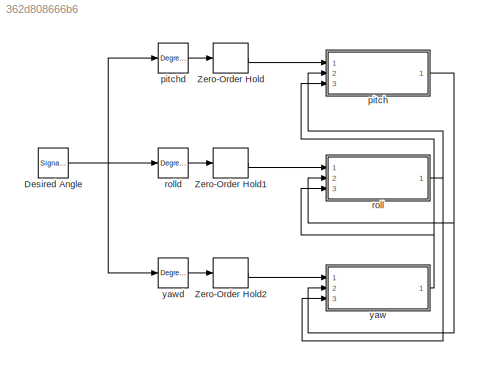
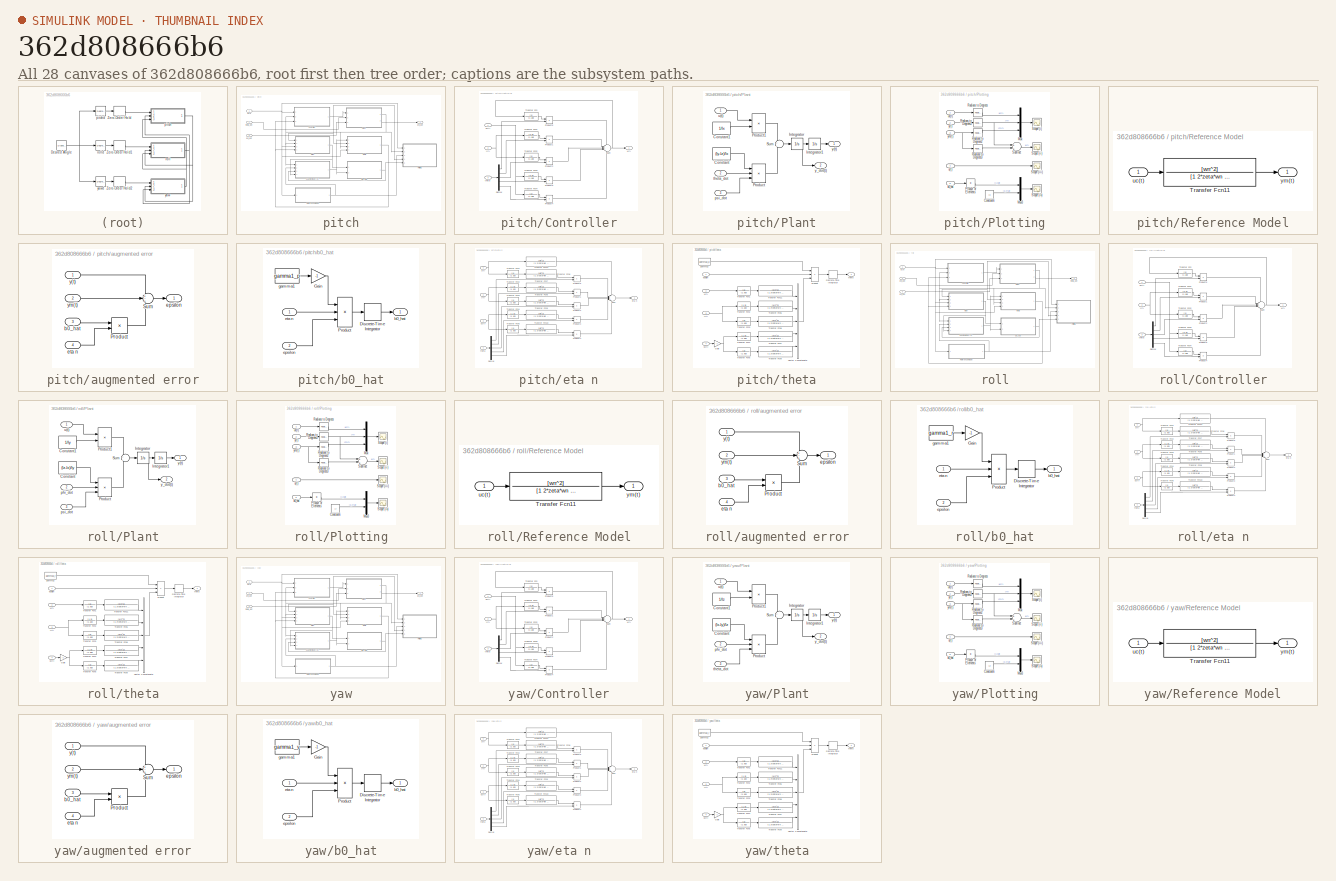
[diagram: thumbnail index - all 28 canvases of the model, root first then tree order]
MODEL slx_362d808666b6
KIND model
CONFIG AbsTol = auto
CONFIG EnableMultiTasking = off
CONFIG FixedStep = auto
CONFIG MaxStep = auto
CONFIG MinStep = auto
CONFIG RelTol = 1e-3
CONFIG SampleTimeConstraint = Unconstrained
CONFIG Solver = VariableStepAuto
CONFIG SolverName = VariableStepAuto
CONFIG StartTime = 0.0
CONFIG StopTime = 100
BLOCK [SignalGenerator] Desired Angle
  Amplitude = 5
  Frequency = 0.05
  Ports = [0, 1]
  WaveForm = square
BLOCK [ZeroOrderHold] Zero-Order Hold
  SampleTime = 1/2000
BLOCK [ZeroOrderHold] Zero-Order Hold1
  SampleTime = 1/2000
BLOCK [ZeroOrderHold] Zero-Order Hold2
  SampleTime = 1/2000
BLOCK [SubSystem] pitch
  Ports = [3, 1]
  RequestExecContextInheritance = off
  Variant = off
BLOCK [SubSystem] pitch/Controller
  Ports = [3, 1]
  RequestExecContextInheritance = off
  Variant = off
BLOCK [Demux] pitch/Controller/Demux
  DisplayOption = bar
  Outputs = 5
  Ports = [1, 5]
BLOCK [Product] pitch/Controller/Product1
  InputSameDT = off
  OutDataTypeStr = Inherit: Inherit via internal rule
  Ports = [2, 1]
  RndMeth = Floor
  SaturateOnIntegerOverflow = off
BLOCK [Product] pitch/Controller/Product2
  InputSameDT = off
  OutDataTypeStr = Inherit: Inherit via internal rule
  Ports = [2, 1]
  RndMeth = Floor
  SaturateOnIntegerOverflow = off
BLOCK [Product] pitch/Controller/Product3
  InputSameDT = off
  OutDataTypeStr = Inherit: Inherit via internal rule
  Ports = [2, 1]
  RndMeth = Floor
  SaturateOnIntegerOverflow = off
BLOCK [Product] pitch/Controller/Product4
  InputSameDT = off
  OutDataTypeStr = Inherit: Inherit via internal rule
  Ports = [2, 1]
  RndMeth = Floor
  SaturateOnIntegerOverflow = off
BLOCK [Product] pitch/Controller/Product5
  InputSameDT = off
  OutDataTypeStr = Inherit: Inherit via internal rule
  Ports = [2, 1]
  RndMeth = Floor
  SaturateOnIntegerOverflow = off
BLOCK [Sum] pitch/Controller/Sum
  IconShape = round
  InputSameDT = off
  Inputs = ---++
  OutDataTypeStr = Inherit: Inherit via internal rule
  Ports = [5, 1]
  SaturateOnIntegerOverflow = off
BLOCK [TransferFcn] pitch/Controller/Transfer Fcn
  Denominator = [1 a0]
BLOCK [TransferFcn] pitch/Controller/Transfer Fcn1
  Denominator = [1 a0]
  Numerator = [1 0]
BLOCK [TransferFcn] pitch/Controller/Transfer Fcn2
  Denominator = [1 a0]
BLOCK [TransferFcn] pitch/Controller/Transfer Fcn3
  Denominator = [1 a0]
  Numerator = [1 0]
BLOCK [TransferFcn] pitch/Controller/Transfer Fcn4
  Denominator = [1 a0]
BLOCK [Inport] pitch/Controller/theta
  IconDisplay = Port number
  Port = 3
BLOCK [Outport] pitch/Controller/u(t)
  IconDisplay = Port number
BLOCK [Inport] pitch/Controller/uc(t)
  IconDisplay = Port number
BLOCK [Inport] pitch/Controller/y(t)
  IconDisplay = Port number
  Port = 2
BLOCK [SubSystem] pitch/Plant
  Ports = [3, 2]
  RequestExecContextInheritance = off
  Variant = off
BLOCK [Constant] pitch/Plant/Constant
  Value = (Iy-Iz)/Ix
BLOCK [Constant] pitch/Plant/Constant1
  Value = 1/Ix
BLOCK [Integrator] pitch/Plant/Integrator
  Ports = [1, 1]
BLOCK [Integrator] pitch/Plant/Integrator1
  Ports = [1, 1]
BLOCK [Product] pitch/Plant/Product
  InputSameDT = off
  Inputs = 3
  OutDataTypeStr = Inherit: Inherit via internal rule
  Ports = [3, 1]
  RndMeth = Floor
  SaturateOnIntegerOverflow = off
BLOCK [Product] pitch/Plant/Product1
  InputSameDT = off
  OutDataTypeStr = Inherit: Inherit via internal rule
  Ports = [2, 1]
  RndMeth = Floor
  SaturateOnIntegerOverflow = off
BLOCK [Sum] pitch/Plant/Sum
  IconShape = round
  InputSameDT = off
  Inputs = +|+
  OutDataTypeStr = Inherit: Inherit via internal rule
  Ports = [2, 1]
  SaturateOnIntegerOverflow = off
BLOCK [Inport] pitch/Plant/psi_dot
  IconDisplay = Port number
  Port = 3
BLOCK [Inport] pitch/Plant/theta_dot
  IconDisplay = Port number
  Port = 2
BLOCK [Inport] pitch/Plant/u(t)
  IconDisplay = Port number
BLOCK [Outport] pitch/Plant/y(t)
  IconDisplay = Port number
BLOCK [Outport] pitch/Plant/y_dot(t)
  IconDisplay = Port number
  Port = 2
BLOCK [SubSystem] pitch/Plotting
  Ports = [5]
  RequestExecContextInheritance = off
  Variant = off
BLOCK [Constant] pitch/Plotting/Constant6
  Value = Ix
BLOCK [Mux] pitch/Plotting/Mux
  DisplayOption = bar
  Inputs = 3
  Ports = [3, 1]
BLOCK [Mux] pitch/Plotting/Mux3
  DisplayOption = bar
  Inputs = 2
  Ports = [2, 1]
BLOCK [Product] pitch/Plotting/Product of Elements
  InputSameDT = off
  Inputs = /
  OutDataTypeStr = Inherit: Inherit via internal rule
  Ports = [1, 1]
  RndMeth = Floor
  SaturateOnIntegerOverflow = off
BLOCK [Reference] pitch/Plotting/Radians to Degrees  REF=simulink_extras/Transformations/Radians
to Degrees
  Ports = [1, 1]
  SourceBlock = simulink_extras/Transformations/Radians\nto Degrees
  SourceProductBaseCode = SL
  SourceProductName = Simulink
  SourceType = RadiansToDegrees
BLOCK [Reference] pitch/Plotting/Radians to Degrees1  REF=simulink_extras/Transformations/Radians
to Degrees
  Ports = [1, 1]
  SourceBlock = simulink_extras/Transformations/Radians\nto Degrees
  SourceProductBaseCode = SL
  SourceProductName = Simulink
  SourceType = RadiansToDegrees
BLOCK [Reference] pitch/Plotting/Radians to Degrees2  REF=simulink_extras/Transformations/Radians
to Degrees
  Ports = [1, 1]
  SourceBlock = simulink_extras/Transformations/Radians\nto Degrees
  SourceProductBaseCode = SL
  SourceProductName = Simulink
  SourceType = RadiansToDegrees
BLOCK [Reference] pitch/Plotting/Radians to Degrees3  REF=simulink_extras/Transformations/Radians
to Degrees
  Ports = [1, 1]
  SourceBlock = simulink_extras/Transformations/Radians\nto Degrees
  SourceProductBaseCode = SL
  SourceProductName = Simulink
  SourceType = RadiansToDegrees
BLOCK [Scope] pitch/Plotting/Scope (i)
  NumInputPorts = 1
  Ports = [1]
  ScopeSpecificationString = Simulink.scopes.TimeScopeBlockCfg('CurrentConfiguration', extmgr.ConfigurationSet(extmgr.Configuration('Core','General UI',true),extmgr.Configuration('Core','Source UI',true),extmgr.Configuration('Sources','WiredSimulink',true,'DataLoggingVariableName','ScopeData1'),extmgr.Configuration('Visuals','Time Domain',true,'SerializedDisplays',{struct('MinYLimReal','-11.47648','MaxYLimReal','10.22602','YL...<+1481ch>  <repeated x3 — deduplicated; at blocks: Scope (i)>
BLOCK [Scope] pitch/Plotting/Scope (ii)
  NumInputPorts = 1
  Ports = [1]
  ScopeSpecificationString = Simulink.scopes.TimeScopeBlockCfg('CurrentConfiguration', extmgr.ConfigurationSet(extmgr.Configuration('Core','General UI',true),extmgr.Configuration('Core','Source UI',true),extmgr.Configuration('Sources','WiredSimulink',true),extmgr.Configuration('Visuals','Time Domain',true,'SerializedDisplays',{struct('MinYLimReal','-5.43198','MaxYLimReal','6.60364','YLabelReal','','MinYLimMag','0.00000','MaxY...<+1374ch>  <repeated x3 — deduplicated; at blocks: Scope (ii)>
BLOCK [Scope] pitch/Plotting/Scope (iii)
  NumInputPorts = 1
  Ports = [1]
  ScopeSpecificationString = Simulink.scopes.TimeScopeBlockCfg('CurrentConfiguration', extmgr.ConfigurationSet(extmgr.Configuration('Core','General UI',true),extmgr.Configuration('Core','Source UI',true),extmgr.Configuration('Sources','WiredSimulink',true,'DataLoggingVariableName','ScopeData2'),extmgr.Configuration('Visuals','Time Domain',true,'SerializedDisplays',{struct('MinYLimReal','-6.67828','MaxYLimReal','7.2386','YLabe...<+1383ch>  <repeated x3 — deduplicated; at blocks: Scope (iii)>
BLOCK [Scope] pitch/Plotting/Scope (iv)
  NumInputPorts = 1
  Ports = [1]
  ScopeSpecificationString = Simulink.scopes.TimeScopeBlockCfg('CurrentConfiguration', extmgr.ConfigurationSet(extmgr.Configuration('Core','General UI',true),extmgr.Configuration('Core','Source UI',true),extmgr.Configuration('Sources','WiredSimulink',true,'DataLoggingVariableName','ScopeData2'),extmgr.Configuration('Visuals','Time Domain',true,'SerializedDisplays',{struct('MinYLimReal','-0.00000','MaxYLimReal','0.25','YLabelR...<+1429ch>  <repeated x3 — deduplicated; at blocks: Scope (iv)>
BLOCK [Sum] pitch/Plotting/Subtract
  InputSameDT = off
  Inputs = +-
  OutDataTypeStr = Inherit: Inherit via internal rule
  Ports = [2, 1]
  SaturateOnIntegerOverflow = off
BLOCK [Inport] pitch/Plotting/b0_hat
  IconDisplay = Port number
  Port = 5
BLOCK [Inport] pitch/Plotting/u(t)
  IconDisplay = Port number
  Port = 4
BLOCK [Inport] pitch/Plotting/uc(t)
  IconDisplay = Port number
BLOCK [Inport] pitch/Plotting/y(t)
  IconDisplay = Port number
  Port = 2
BLOCK [Inport] pitch/Plotting/ym(t)
  IconDisplay = Port number
  Port = 3
BLOCK [SubSystem] pitch/Reference Model
  Ports = [1, 1]
  RequestExecContextInheritance = off
  Variant = off
BLOCK [TransferFcn] pitch/Reference Model/Transfer Fcn11
  Denominator = [1 2*zeta*wn wn^2]
  Numerator = [wn^2]
BLOCK [Inport] pitch/Reference Model/uc(t)
  IconDisplay = Port number
BLOCK [Outport] pitch/Reference Model/ym(t)
  IconDisplay = Port number
BLOCK [SubSystem] pitch/augmented error
  Ports = [4, 1]
  RequestExecContextInheritance = off
  Variant = off
BLOCK [Product] pitch/augmented error/Product
  InputSameDT = off
  OutDataTypeStr = Inherit: Inherit via internal rule
  Ports = [2, 1]
  RndMeth = Floor
  SaturateOnIntegerOverflow = off
BLOCK [Sum] pitch/augmented error/Sum
  IconShape = round
  InputSameDT = off
  Inputs = +-+
  OutDataTypeStr = Inherit: Inherit via internal rule
  Ports = [3, 1]
  SaturateOnIntegerOverflow = off
BLOCK [Inport] pitch/augmented error/b0_hat
  IconDisplay = Port number
  Port = 3
BLOCK [Outport] pitch/augmented error/epsilon
  IconDisplay = Port number
BLOCK [Inport] pitch/augmented error/eta n
  IconDisplay = Port number
  Port = 4
BLOCK [Inport] pitch/augmented error/y(t)
  IconDisplay = Port number
BLOCK [Inport] pitch/augmented error/ym(t)
  IconDisplay = Port number
  Port = 2
BLOCK [SubSystem] pitch/b0_hat
  Ports = [2, 1]
  RequestExecContextInheritance = off
  Variant = off
BLOCK [DiscreteIntegrator] pitch/b0_hat/Discrete-Time Integrator
  ICPrevOutput = DiscIntNeverNeededParam
  ICPrevScaledInput = DiscIntNeverNeededParam
  InitialCondition = b0_zero_p
  InitialConditionSetting = State (most efficient)
  Ports = [1, 1]
  SampleTime = -1
BLOCK [Gain] pitch/b0_hat/Gain
  Gain = -1
  OutDataTypeStr = Inherit: Inherit via internal rule
  ParamDataTypeStr = Inherit: Inherit via internal rule
  SaturateOnIntegerOverflow = off
BLOCK [Product] pitch/b0_hat/Product
  InputSameDT = off
  Inputs = 3
  OutDataTypeStr = Inherit: Inherit via internal rule
  Ports = [3, 1]
  RndMeth = Floor
  SaturateOnIntegerOverflow = off
BLOCK [Outport] pitch/b0_hat/b0_hat
  IconDisplay = Port number
BLOCK [Inport] pitch/b0_hat/epsilon
  IconDisplay = Port number
  Port = 2
BLOCK [Inport] pitch/b0_hat/eta n
  IconDisplay = Port number
BLOCK [Constant] pitch/b0_hat/gamma1
  Value = gamma1_p
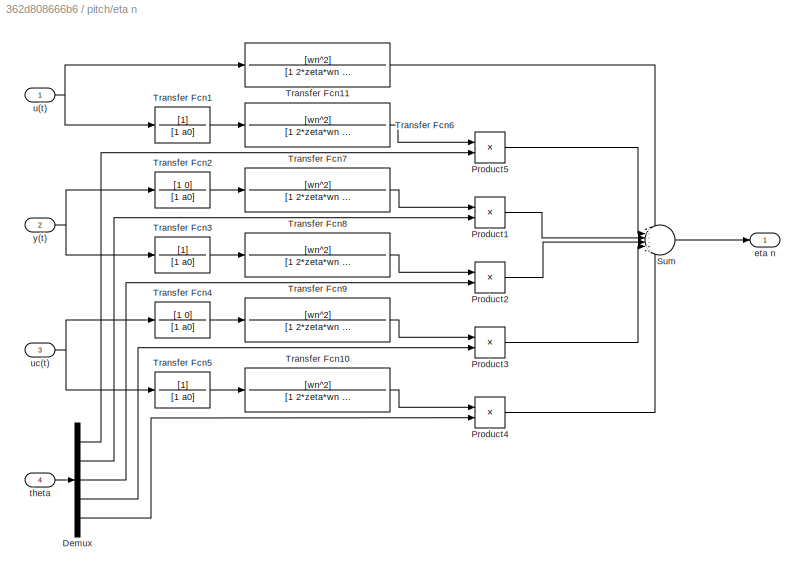
BLOCK [SubSystem] pitch/eta n
  Ports = [4, 1]
  RequestExecContextInheritance = off
  Variant = off
BLOCK [Demux] pitch/eta n/Demux
  DisplayOption = bar
  Outputs = 5
  Ports = [1, 5]
BLOCK [Product] pitch/eta n/Product1
  InputSameDT = off
  OutDataTypeStr = Inherit: Inherit via internal rule
  Ports = [2, 1]
  RndMeth = Floor
  SaturateOnIntegerOverflow = off
BLOCK [Product] pitch/eta n/Product2
  InputSameDT = off
  OutDataTypeStr = Inherit: Inherit via internal rule
  Ports = [2, 1]
  RndMeth = Floor
  SaturateOnIntegerOverflow = off
BLOCK [Product] pitch/eta n/Product3
  InputSameDT = off
  OutDataTypeStr = Inherit: Inherit via internal rule
  Ports = [2, 1]
  RndMeth = Floor
  SaturateOnIntegerOverflow = off
BLOCK [Product] pitch/eta n/Product4
  InputSameDT = off
  OutDataTypeStr = Inherit: Inherit via internal rule
  Ports = [2, 1]
  RndMeth = Floor
  SaturateOnIntegerOverflow = off
BLOCK [Product] pitch/eta n/Product5
  InputSameDT = off
  OutDataTypeStr = Inherit: Inherit via internal rule
  Ports = [2, 1]
  RndMeth = Floor
  SaturateOnIntegerOverflow = off
BLOCK [Sum] pitch/eta n/Sum
  IconShape = round
  InputSameDT = off
  Inputs = ----++
  OutDataTypeStr = Inherit: Inherit via internal rule
  Ports = [6, 1]
  SaturateOnIntegerOverflow = off
BLOCK [TransferFcn] pitch/eta n/Transfer Fcn1
  Denominator = [1 a0]
BLOCK [TransferFcn] pitch/eta n/Transfer Fcn10
  Denominator = [1 2*zeta*wn wn^2]
  Numerator = [wn^2]
BLOCK [TransferFcn] pitch/eta n/Transfer Fcn11
  Denominator = [1 2*zeta*wn wn^2]
  Numerator = [wn^2]
BLOCK [TransferFcn] pitch/eta n/Transfer Fcn2
  Denominator = [1 a0]
  Numerator = [1 0]
BLOCK [TransferFcn] pitch/eta n/Transfer Fcn3
  Denominator = [1 a0]
BLOCK [TransferFcn] pitch/eta n/Transfer Fcn4
  Denominator = [1 a0]
  Numerator = [1 0]
BLOCK [TransferFcn] pitch/eta n/Transfer Fcn5
  Denominator = [1 a0]
BLOCK [TransferFcn] pitch/eta n/Transfer Fcn6
  Denominator = [1 2*zeta*wn wn^2]
  Numerator = [wn^2]
BLOCK [TransferFcn] pitch/eta n/Transfer Fcn7
  Denominator = [1 2*zeta*wn wn^2]
  Numerator = [wn^2]
BLOCK [TransferFcn] pitch/eta n/Transfer Fcn8
  Denominator = [1 2*zeta*wn wn^2]
  Numerator = [wn^2]
BLOCK [TransferFcn] pitch/eta n/Transfer Fcn9
  Denominator = [1 2*zeta*wn wn^2]
  Numerator = [wn^2]
BLOCK [Outport] pitch/eta n/eta n
  IconDisplay = Port number
BLOCK [Inport] pitch/eta n/theta
  IconDisplay = Port number
  Port = 4
BLOCK [Inport] pitch/eta n/u(t)
  IconDisplay = Port number
BLOCK [Inport] pitch/eta n/uc(t)
  IconDisplay = Port number
  Port = 3
BLOCK [Inport] pitch/eta n/y(t)
  IconDisplay = Port number
  Port = 2
BLOCK [Outport] pitch/phi_dot
  IconDisplay = Port number
BLOCK [Inport] pitch/psi_dot
  IconDisplay = Port number
  Port = 3
BLOCK [SubSystem] pitch/theta
  Ports = [4, 1]
  RequestExecContextInheritance = off
  Variant = off
BLOCK [DiscreteIntegrator] pitch/theta/Discrete-Time Integrator
  ICPrevOutput = DiscIntNeverNeededParam
  ICPrevScaledInput = DiscIntNeverNeededParam
  InitialCondition = theta_zero_p
  InitialConditionSetting = State (most efficient)
  Ports = [1, 1]
  SampleTime = -1
BLOCK [Gain] pitch/theta/Gain
  Gain = -1
  OutDataTypeStr = Inherit: Inherit via internal rule
  ParamDataTypeStr = Inherit: Inherit via internal rule
  SaturateOnIntegerOverflow = off
BLOCK [Product] pitch/theta/Product
  InputSameDT = off
  Inputs = 3
  OutDataTypeStr = Inherit: Inherit via internal rule
  Ports = [3, 1]
  RndMeth = Floor
  SaturateOnIntegerOverflow = off
BLOCK [TransferFcn] pitch/theta/Transfer Fcn1
  Denominator = [1 a0]
BLOCK [TransferFcn] pitch/theta/Transfer Fcn11
  Denominator = [1 2*zeta*wn wn^2]
  Numerator = [wn^2]
BLOCK [TransferFcn] pitch/theta/Transfer Fcn2
  Denominator = [1 a0]
  Numerator = [1 0]
BLOCK [TransferFcn] pitch/theta/Transfer Fcn3
  Denominator = [1 a0]
BLOCK [TransferFcn] pitch/theta/Transfer Fcn4
  Denominator = [1 a0]
  Numerator = [1 0]
BLOCK [TransferFcn] pitch/theta/Transfer Fcn5
  Denominator = [1 a0]
BLOCK [TransferFcn] pitch/theta/Transfer Fcn6
  Denominator = [1 2*zeta*wn wn^2]
  Numerator = [wn^2]
BLOCK [TransferFcn] pitch/theta/Transfer Fcn7
  Denominator = [1 2*zeta*wn wn^2]
  Numerator = [wn^2]
BLOCK [TransferFcn] pitch/theta/Transfer Fcn8
  Denominator = [1 2*zeta*wn wn^2]
  Numerator = [wn^2]
BLOCK [TransferFcn] pitch/theta/Transfer Fcn9
  Denominator = [1 2*zeta*wn wn^2]
  Numerator = [wn^2]
BLOCK [Concatenate] pitch/theta/Vector Concatenate
  NumInputs = 5
  Ports = [5, 1]
BLOCK [Inport] pitch/theta/epsilon
  IconDisplay = Port number
BLOCK [Constant] pitch/theta/gamma2
  Value = gamma2_p
BLOCK [Outport] pitch/theta/theta
  IconDisplay = Port number
BLOCK [Inport] pitch/theta/u(t)
  IconDisplay = Port number
  Port = 2
BLOCK [Inport] pitch/theta/uc(t)
  IconDisplay = Port number
  Port = 4
BLOCK [Inport] pitch/theta/y(t)
  IconDisplay = Port number
  Port = 3
BLOCK [Inport] pitch/theta_dot
  IconDisplay = Port number
  Port = 2
BLOCK [Inport] pitch/uc(t)
  IconDisplay = Port number
BLOCK [Reference] pitchd  REF=simulink_extras/Transformations/Degrees to
Radians
  Ports = [1, 1]
  SourceBlock = simulink_extras/Transformations/Degrees to\nRadians
  SourceProductBaseCode = SL
  SourceProductName = Simulink
  SourceType = DegreesToRadians
BLOCK [SubSystem] roll
  Ports = [3, 1]
  RequestExecContextInheritance = off
  Variant = off
BLOCK [SubSystem] roll/Controller
  Ports = [3, 1]
  RequestExecContextInheritance = off
  Variant = off
BLOCK [Demux] roll/Controller/Demux
  DisplayOption = bar
  Outputs = 5
  Ports = [1, 5]
BLOCK [Product] roll/Controller/Product1
  InputSameDT = off
  OutDataTypeStr = Inherit: Inherit via internal rule
  Ports = [2, 1]
  RndMeth = Floor
  SaturateOnIntegerOverflow = off
BLOCK [Product] roll/Controller/Product2
  InputSameDT = off
  OutDataTypeStr = Inherit: Inherit via internal rule
  Ports = [2, 1]
  RndMeth = Floor
  SaturateOnIntegerOverflow = off
BLOCK [Product] roll/Controller/Product3
  InputSameDT = off
  OutDataTypeStr = Inherit: Inherit via internal rule
  Ports = [2, 1]
  RndMeth = Floor
  SaturateOnIntegerOverflow = off
BLOCK [Product] roll/Controller/Product4
  InputSameDT = off
  OutDataTypeStr = Inherit: Inherit via internal rule
  Ports = [2, 1]
  RndMeth = Floor
  SaturateOnIntegerOverflow = off
BLOCK [Product] roll/Controller/Product5
  InputSameDT = off
  OutDataTypeStr = Inherit: Inherit via internal rule
  Ports = [2, 1]
  RndMeth = Floor
  SaturateOnIntegerOverflow = off
BLOCK [Sum] roll/Controller/Sum
  IconShape = round
  InputSameDT = off
  Inputs = ---++
  OutDataTypeStr = Inherit: Inherit via internal rule
  Ports = [5, 1]
  SaturateOnIntegerOverflow = off
BLOCK [TransferFcn] roll/Controller/Transfer Fcn
  Denominator = [1 a0]
BLOCK [TransferFcn] roll/Controller/Transfer Fcn1
  Denominator = [1 a0]
  Numerator = [1 0]
BLOCK [TransferFcn] roll/Controller/Transfer Fcn2
  Denominator = [1 a0]
BLOCK [TransferFcn] roll/Controller/Transfer Fcn3
  Denominator = [1 a0]
  Numerator = [1 0]
BLOCK [TransferFcn] roll/Controller/Transfer Fcn4
  Denominator = [1 a0]
BLOCK [Inport] roll/Controller/theta
  IconDisplay = Port number
  Port = 3
BLOCK [Outport] roll/Controller/u(t)
  IconDisplay = Port number
BLOCK [Inport] roll/Controller/uc(t)
  IconDisplay = Port number
BLOCK [Inport] roll/Controller/y(t)
  IconDisplay = Port number
  Port = 2
BLOCK [SubSystem] roll/Plant
  Ports = [3, 2]
  RequestExecContextInheritance = off
  Variant = off
BLOCK [Constant] roll/Plant/Constant
  Value = (Iz-Ix)/Iy
BLOCK [Constant] roll/Plant/Constant1
  Value = 1/Iy
BLOCK [Integrator] roll/Plant/Integrator
  Ports = [1, 1]
BLOCK [Integrator] roll/Plant/Integrator1
  Ports = [1, 1]
BLOCK [Product] roll/Plant/Product
  InputSameDT = off
  Inputs = 3
  OutDataTypeStr = Inherit: Inherit via internal rule
  Ports = [3, 1]
  RndMeth = Floor
  SaturateOnIntegerOverflow = off
BLOCK [Product] roll/Plant/Product1
  InputSameDT = off
  OutDataTypeStr = Inherit: Inherit via internal rule
  Ports = [2, 1]
  RndMeth = Floor
  SaturateOnIntegerOverflow = off
BLOCK [Sum] roll/Plant/Sum
  IconShape = round
  InputSameDT = off
  Inputs = +|+
  OutDataTypeStr = Inherit: Inherit via internal rule
  Ports = [2, 1]
  SaturateOnIntegerOverflow = off
BLOCK [Inport] roll/Plant/phi_dot
  IconDisplay = Port number
  Port = 2
BLOCK [Inport] roll/Plant/psi_dot
  IconDisplay = Port number
  Port = 3
BLOCK [Inport] roll/Plant/u(t)
  IconDisplay = Port number
BLOCK [Outport] roll/Plant/y(t)
  IconDisplay = Port number
BLOCK [Outport] roll/Plant/y_dot(t)
  IconDisplay = Port number
  Port = 2
BLOCK [SubSystem] roll/Plotting
  Ports = [5]
  RequestExecContextInheritance = off
  Variant = off
BLOCK [Constant] roll/Plotting/Constant6
  Value = Iy
BLOCK [Mux] roll/Plotting/Mux
  DisplayOption = bar
  Inputs = 3
  Ports = [3, 1]
BLOCK [Mux] roll/Plotting/Mux3
  DisplayOption = bar
  Inputs = 2
  Ports = [2, 1]
BLOCK [Product] roll/Plotting/Product of Elements
  InputSameDT = off
  Inputs = /
  OutDataTypeStr = Inherit: Inherit via internal rule
  Ports = [1, 1]
  RndMeth = Floor
  SaturateOnIntegerOverflow = off
BLOCK [Reference] roll/Plotting/Radians to Degrees  REF=simulink_extras/Transformations/Radians
to Degrees
  Ports = [1, 1]
  SourceBlock = simulink_extras/Transformations/Radians\nto Degrees
  SourceProductBaseCode = SL
  SourceProductName = Simulink
  SourceType = RadiansToDegrees
BLOCK [Reference] roll/Plotting/Radians to Degrees1  REF=simulink_extras/Transformations/Radians
to Degrees
  Ports = [1, 1]
  SourceBlock = simulink_extras/Transformations/Radians\nto Degrees
  SourceProductBaseCode = SL
  SourceProductName = Simulink
  SourceType = RadiansToDegrees
BLOCK [Reference] roll/Plotting/Radians to Degrees2  REF=simulink_extras/Transformations/Radians
to Degrees
  Ports = [1, 1]
  SourceBlock = simulink_extras/Transformations/Radians\nto Degrees
  SourceProductBaseCode = SL
  SourceProductName = Simulink
  SourceType = RadiansToDegrees
BLOCK [Reference] roll/Plotting/Radians to Degrees3  REF=simulink_extras/Transformations/Radians
to Degrees
  Ports = [1, 1]
  SourceBlock = simulink_extras/Transformations/Radians\nto Degrees
  SourceProductBaseCode = SL
  SourceProductName = Simulink
  SourceType = RadiansToDegrees
BLOCK [Scope] roll/Plotting/Scope (i)
  NumInputPorts = 1
  Ports = [1]
BLOCK [Scope] roll/Plotting/Scope (ii)
  NumInputPorts = 1
  Ports = [1]
BLOCK [Scope] roll/Plotting/Scope (iii)
  NumInputPorts = 1
  Ports = [1]
BLOCK [Scope] roll/Plotting/Scope (iv)
  NumInputPorts = 1
  Ports = [1]
BLOCK [Sum] roll/Plotting/Subtract
  InputSameDT = off
  Inputs = +-
  OutDataTypeStr = Inherit: Inherit via internal rule
  Ports = [2, 1]
  SaturateOnIntegerOverflow = off
BLOCK [Inport] roll/Plotting/b0_hat
  IconDisplay = Port number
  Port = 5
BLOCK [Inport] roll/Plotting/u(t)
  IconDisplay = Port number
  Port = 4
BLOCK [Inport] roll/Plotting/uc(t)
  IconDisplay = Port number
BLOCK [Inport] roll/Plotting/y(t)
  IconDisplay = Port number
  Port = 2
BLOCK [Inport] roll/Plotting/ym(t)
  IconDisplay = Port number
  Port = 3
BLOCK [SubSystem] roll/Reference Model
  Ports = [1, 1]
  RequestExecContextInheritance = off
  Variant = off
BLOCK [TransferFcn] roll/Reference Model/Transfer Fcn11
  Denominator = [1 2*zeta*wn wn^2]
  Numerator = [wn^2]
BLOCK [Inport] roll/Reference Model/uc(t)
  IconDisplay = Port number
BLOCK [Outport] roll/Reference Model/ym(t)
  IconDisplay = Port number
BLOCK [SubSystem] roll/augmented error
  Ports = [4, 1]
  RequestExecContextInheritance = off
  Variant = off
BLOCK [Product] roll/augmented error/Product
  InputSameDT = off
  OutDataTypeStr = Inherit: Inherit via internal rule
  Ports = [2, 1]
  RndMeth = Floor
  SaturateOnIntegerOverflow = off
BLOCK [Sum] roll/augmented error/Sum
  IconShape = round
  InputSameDT = off
  Inputs = +-+
  OutDataTypeStr = Inherit: Inherit via internal rule
  Ports = [3, 1]
  SaturateOnIntegerOverflow = off
BLOCK [Inport] roll/augmented error/b0_hat
  IconDisplay = Port number
  Port = 3
BLOCK [Outport] roll/augmented error/epsilon
  IconDisplay = Port number
BLOCK [Inport] roll/augmented error/eta n
  IconDisplay = Port number
  Port = 4
BLOCK [Inport] roll/augmented error/y(t)
  IconDisplay = Port number
BLOCK [Inport] roll/augmented error/ym(t)
  IconDisplay = Port number
  Port = 2
BLOCK [SubSystem] roll/b0_hat
  Ports = [2, 1]
  RequestExecContextInheritance = off
  Variant = off
BLOCK [DiscreteIntegrator] roll/b0_hat/Discrete-Time Integrator
  ICPrevOutput = DiscIntNeverNeededParam
  ICPrevScaledInput = DiscIntNeverNeededParam
  InitialCondition = b0_zero_r
  InitialConditionSetting = State (most efficient)
  Ports = [1, 1]
  SampleTime = -1
BLOCK [Gain] roll/b0_hat/Gain
  Gain = -1
  OutDataTypeStr = Inherit: Inherit via internal rule
  ParamDataTypeStr = Inherit: Inherit via internal rule
  SaturateOnIntegerOverflow = off
BLOCK [Product] roll/b0_hat/Product
  InputSameDT = off
  Inputs = 3
  OutDataTypeStr = Inherit: Inherit via internal rule
  Ports = [3, 1]
  RndMeth = Floor
  SaturateOnIntegerOverflow = off
BLOCK [Outport] roll/b0_hat/b0_hat
  IconDisplay = Port number
BLOCK [Inport] roll/b0_hat/epsilon
  IconDisplay = Port number
  Port = 2
BLOCK [Inport] roll/b0_hat/eta n
  IconDisplay = Port number
BLOCK [Constant] roll/b0_hat/gamma1
  Value = gamma1_r
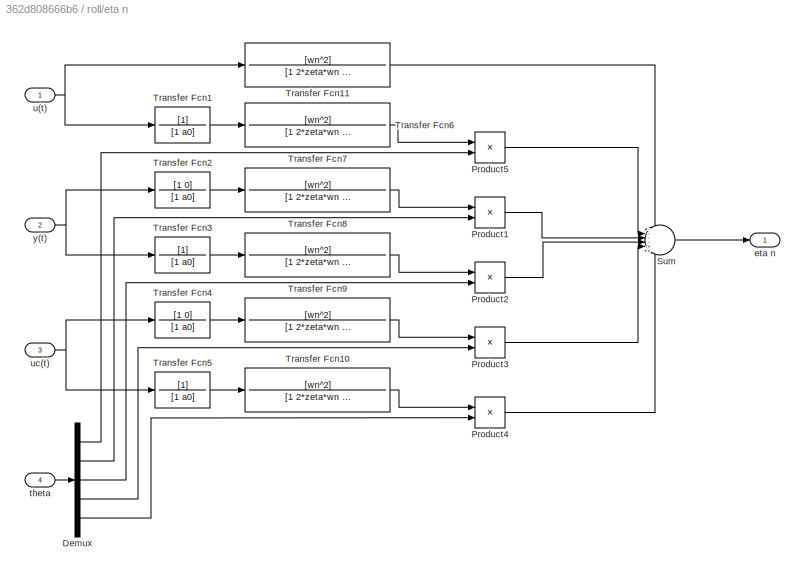
BLOCK [SubSystem] roll/eta n
  Ports = [4, 1]
  RequestExecContextInheritance = off
  Variant = off
BLOCK [Demux] roll/eta n/Demux
  DisplayOption = bar
  Outputs = 5
  Ports = [1, 5]
BLOCK [Product] roll/eta n/Product1
  InputSameDT = off
  OutDataTypeStr = Inherit: Inherit via internal rule
  Ports = [2, 1]
  RndMeth = Floor
  SaturateOnIntegerOverflow = off
BLOCK [Product] roll/eta n/Product2
  InputSameDT = off
  OutDataTypeStr = Inherit: Inherit via internal rule
  Ports = [2, 1]
  RndMeth = Floor
  SaturateOnIntegerOverflow = off
BLOCK [Product] roll/eta n/Product3
  InputSameDT = off
  OutDataTypeStr = Inherit: Inherit via internal rule
  Ports = [2, 1]
  RndMeth = Floor
  SaturateOnIntegerOverflow = off
BLOCK [Product] roll/eta n/Product4
  InputSameDT = off
  OutDataTypeStr = Inherit: Inherit via internal rule
  Ports = [2, 1]
  RndMeth = Floor
  SaturateOnIntegerOverflow = off
BLOCK [Product] roll/eta n/Product5
  InputSameDT = off
  OutDataTypeStr = Inherit: Inherit via internal rule
  Ports = [2, 1]
  RndMeth = Floor
  SaturateOnIntegerOverflow = off
BLOCK [Sum] roll/eta n/Sum
  IconShape = round
  InputSameDT = off
  Inputs = ----++
  OutDataTypeStr = Inherit: Inherit via internal rule
  Ports = [6, 1]
  SaturateOnIntegerOverflow = off
BLOCK [TransferFcn] roll/eta n/Transfer Fcn1
  Denominator = [1 a0]
BLOCK [TransferFcn] roll/eta n/Transfer Fcn10
  Denominator = [1 2*zeta*wn wn^2]
  Numerator = [wn^2]
BLOCK [TransferFcn] roll/eta n/Transfer Fcn11
  Denominator = [1 2*zeta*wn wn^2]
  Numerator = [wn^2]
BLOCK [TransferFcn] roll/eta n/Transfer Fcn2
  Denominator = [1 a0]
  Numerator = [1 0]
BLOCK [TransferFcn] roll/eta n/Transfer Fcn3
  Denominator = [1 a0]
BLOCK [TransferFcn] roll/eta n/Transfer Fcn4
  Denominator = [1 a0]
  Numerator = [1 0]
BLOCK [TransferFcn] roll/eta n/Transfer Fcn5
  Denominator = [1 a0]
BLOCK [TransferFcn] roll/eta n/Transfer Fcn6
  Denominator = [1 2*zeta*wn wn^2]
  Numerator = [wn^2]
BLOCK [TransferFcn] roll/eta n/Transfer Fcn7
  Denominator = [1 2*zeta*wn wn^2]
  Numerator = [wn^2]
BLOCK [TransferFcn] roll/eta n/Transfer Fcn8
  Denominator = [1 2*zeta*wn wn^2]
  Numerator = [wn^2]
BLOCK [TransferFcn] roll/eta n/Transfer Fcn9
  Denominator = [1 2*zeta*wn wn^2]
  Numerator = [wn^2]
BLOCK [Outport] roll/eta n/eta n
  IconDisplay = Port number
BLOCK [Inport] roll/eta n/theta
  IconDisplay = Port number
  Port = 4
BLOCK [Inport] roll/eta n/u(t)
  IconDisplay = Port number
BLOCK [Inport] roll/eta n/uc(t)
  IconDisplay = Port number
  Port = 3
BLOCK [Inport] roll/eta n/y(t)
  IconDisplay = Port number
  Port = 2
BLOCK [Inport] roll/phi_dot
  IconDisplay = Port number
  Port = 2
BLOCK [Inport] roll/psi_dot
  IconDisplay = Port number
  Port = 3
BLOCK [SubSystem] roll/theta
  Ports = [4, 1]
  RequestExecContextInheritance = off
  Variant = off
BLOCK [DiscreteIntegrator] roll/theta/Discrete-Time Integrator
  ICPrevOutput = DiscIntNeverNeededParam
  ICPrevScaledInput = DiscIntNeverNeededParam
  InitialCondition = theta_zero_r
  InitialConditionSetting = State (most efficient)
  Ports = [1, 1]
  SampleTime = -1
BLOCK [Gain] roll/theta/Gain
  Gain = -1
  OutDataTypeStr = Inherit: Inherit via internal rule
  ParamDataTypeStr = Inherit: Inherit via internal rule
  SaturateOnIntegerOverflow = off
BLOCK [Product] roll/theta/Product
  InputSameDT = off
  Inputs = 3
  OutDataTypeStr = Inherit: Inherit via internal rule
  Ports = [3, 1]
  RndMeth = Floor
  SaturateOnIntegerOverflow = off
BLOCK [TransferFcn] roll/theta/Transfer Fcn1
  Denominator = [1 a0]
BLOCK [TransferFcn] roll/theta/Transfer Fcn11
  Denominator = [1 2*zeta*wn wn^2]
  Numerator = [wn^2]
BLOCK [TransferFcn] roll/theta/Transfer Fcn2
  Denominator = [1 a0]
  Numerator = [1 0]
BLOCK [TransferFcn] roll/theta/Transfer Fcn3
  Denominator = [1 a0]
BLOCK [TransferFcn] roll/theta/Transfer Fcn4
  Denominator = [1 a0]
  Numerator = [1 0]
BLOCK [TransferFcn] roll/theta/Transfer Fcn5
  Denominator = [1 a0]
BLOCK [TransferFcn] roll/theta/Transfer Fcn6
  Denominator = [1 2*zeta*wn wn^2]
  Numerator = [wn^2]
BLOCK [TransferFcn] roll/theta/Transfer Fcn7
  Denominator = [1 2*zeta*wn wn^2]
  Numerator = [wn^2]
BLOCK [TransferFcn] roll/theta/Transfer Fcn8
  Denominator = [1 2*zeta*wn wn^2]
  Numerator = [wn^2]
BLOCK [TransferFcn] roll/theta/Transfer Fcn9
  Denominator = [1 2*zeta*wn wn^2]
  Numerator = [wn^2]
BLOCK [Concatenate] roll/theta/Vector Concatenate
  NumInputs = 5
  Ports = [5, 1]
BLOCK [Inport] roll/theta/epsilon
  IconDisplay = Port number
BLOCK [Constant] roll/theta/gamma2
  Value = gamma2_r
BLOCK [Outport] roll/theta/theta
  IconDisplay = Port number
BLOCK [Inport] roll/theta/u(t)
  IconDisplay = Port number
  Port = 2
BLOCK [Inport] roll/theta/uc(t)
  IconDisplay = Port number
  Port = 4
BLOCK [Inport] roll/theta/y(t)
  IconDisplay = Port number
  Port = 3
BLOCK [Outport] roll/theta_dot
  IconDisplay = Port number
BLOCK [Inport] roll/uc(t)
  IconDisplay = Port number
BLOCK [Reference] rolld  REF=simulink_extras/Transformations/Degrees to
Radians
  Ports = [1, 1]
  SourceBlock = simulink_extras/Transformations/Degrees to\nRadians
  SourceProductBaseCode = SL
  SourceProductName = Simulink
  SourceType = DegreesToRadians
BLOCK [SubSystem] yaw
  Ports = [3, 1]
  RequestExecContextInheritance = off
  Variant = off
BLOCK [SubSystem] yaw/Controller
  Ports = [3, 1]
  RequestExecContextInheritance = off
  Variant = off
BLOCK [Demux] yaw/Controller/Demux
  DisplayOption = bar
  Outputs = 5
  Ports = [1, 5]
BLOCK [Product] yaw/Controller/Product1
  InputSameDT = off
  OutDataTypeStr = Inherit: Inherit via internal rule
  Ports = [2, 1]
  RndMeth = Floor
  SaturateOnIntegerOverflow = off
BLOCK [Product] yaw/Controller/Product2
  InputSameDT = off
  OutDataTypeStr = Inherit: Inherit via internal rule
  Ports = [2, 1]
  RndMeth = Floor
  SaturateOnIntegerOverflow = off
BLOCK [Product] yaw/Controller/Product3
  InputSameDT = off
  OutDataTypeStr = Inherit: Inherit via internal rule
  Ports = [2, 1]
  RndMeth = Floor
  SaturateOnIntegerOverflow = off
BLOCK [Product] yaw/Controller/Product4
  InputSameDT = off
  OutDataTypeStr = Inherit: Inherit via internal rule
  Ports = [2, 1]
  RndMeth = Floor
  SaturateOnIntegerOverflow = off
BLOCK [Product] yaw/Controller/Product5
  InputSameDT = off
  OutDataTypeStr = Inherit: Inherit via internal rule
  Ports = [2, 1]
  RndMeth = Floor
  SaturateOnIntegerOverflow = off
BLOCK [Sum] yaw/Controller/Sum
  IconShape = round
  InputSameDT = off
  Inputs = ---++
  OutDataTypeStr = Inherit: Inherit via internal rule
  Ports = [5, 1]
  SaturateOnIntegerOverflow = off
BLOCK [TransferFcn] yaw/Controller/Transfer Fcn
  Denominator = [1 a0]
BLOCK [TransferFcn] yaw/Controller/Transfer Fcn1
  Denominator = [1 a0]
  Numerator = [1 0]
BLOCK [TransferFcn] yaw/Controller/Transfer Fcn2
  Denominator = [1 a0]
BLOCK [TransferFcn] yaw/Controller/Transfer Fcn3
  Denominator = [1 a0]
  Numerator = [1 0]
BLOCK [TransferFcn] yaw/Controller/Transfer Fcn4
  Denominator = [1 a0]
BLOCK [Inport] yaw/Controller/theta
  IconDisplay = Port number
  Port = 3
BLOCK [Outport] yaw/Controller/u(t)
  IconDisplay = Port number
BLOCK [Inport] yaw/Controller/uc(t)
  IconDisplay = Port number
BLOCK [Inport] yaw/Controller/y(t)
  IconDisplay = Port number
  Port = 2
BLOCK [SubSystem] yaw/Plant
  Ports = [3, 2]
  RequestExecContextInheritance = off
  Variant = off
BLOCK [Constant] yaw/Plant/Constant
  Value = (Ix-Iy)/Iz
BLOCK [Constant] yaw/Plant/Constant1
  Value = 1/Iz
BLOCK [Integrator] yaw/Plant/Integrator
  Ports = [1, 1]
BLOCK [Integrator] yaw/Plant/Integrator1
  Ports = [1, 1]
BLOCK [Product] yaw/Plant/Product
  InputSameDT = off
  Inputs = 3
  OutDataTypeStr = Inherit: Inherit via internal rule
  Ports = [3, 1]
  RndMeth = Floor
  SaturateOnIntegerOverflow = off
BLOCK [Product] yaw/Plant/Product1
  InputSameDT = off
  OutDataTypeStr = Inherit: Inherit via internal rule
  Ports = [2, 1]
  RndMeth = Floor
  SaturateOnIntegerOverflow = off
BLOCK [Sum] yaw/Plant/Sum
  IconShape = round
  InputSameDT = off
  Inputs = +|+
  OutDataTypeStr = Inherit: Inherit via internal rule
  Ports = [2, 1]
  SaturateOnIntegerOverflow = off
BLOCK [Inport] yaw/Plant/phi_dot
  IconDisplay = Port number
  Port = 2
BLOCK [Inport] yaw/Plant/theta_dot
  IconDisplay = Port number
  Port = 3
BLOCK [Inport] yaw/Plant/u(t)
  IconDisplay = Port number
BLOCK [Outport] yaw/Plant/y(t)
  IconDisplay = Port number
BLOCK [Outport] yaw/Plant/y_dot(t)
  IconDisplay = Port number
  Port = 2
BLOCK [SubSystem] yaw/Plotting
  Ports = [5]
  RequestExecContextInheritance = off
  Variant = off
BLOCK [Constant] yaw/Plotting/Constant6
  Value = Iz
BLOCK [Mux] yaw/Plotting/Mux
  DisplayOption = bar
  Inputs = 3
  Ports = [3, 1]
BLOCK [Mux] yaw/Plotting/Mux3
  DisplayOption = bar
  Inputs = 2
  Ports = [2, 1]
BLOCK [Product] yaw/Plotting/Product of Elements
  InputSameDT = off
  Inputs = /
  OutDataTypeStr = Inherit: Inherit via internal rule
  Ports = [1, 1]
  RndMeth = Floor
  SaturateOnIntegerOverflow = off
BLOCK [Reference] yaw/Plotting/Radians to Degrees  REF=simulink_extras/Transformations/Radians
to Degrees
  Ports = [1, 1]
  SourceBlock = simulink_extras/Transformations/Radians\nto Degrees
  SourceProductBaseCode = SL
  SourceProductName = Simulink
  SourceType = RadiansToDegrees
BLOCK [Reference] yaw/Plotting/Radians to Degrees1  REF=simulink_extras/Transformations/Radians
to Degrees
  Ports = [1, 1]
  SourceBlock = simulink_extras/Transformations/Radians\nto Degrees
  SourceProductBaseCode = SL
  SourceProductName = Simulink
  SourceType = RadiansToDegrees
BLOCK [Reference] yaw/Plotting/Radians to Degrees2  REF=simulink_extras/Transformations/Radians
to Degrees
  Ports = [1, 1]
  SourceBlock = simulink_extras/Transformations/Radians\nto Degrees
  SourceProductBaseCode = SL
  SourceProductName = Simulink
  SourceType = RadiansToDegrees
BLOCK [Reference] yaw/Plotting/Radians to Degrees3  REF=simulink_extras/Transformations/Radians
to Degrees
  Ports = [1, 1]
  SourceBlock = simulink_extras/Transformations/Radians\nto Degrees
  SourceProductBaseCode = SL
  SourceProductName = Simulink
  SourceType = RadiansToDegrees
BLOCK [Scope] yaw/Plotting/Scope (i)
  NumInputPorts = 1
  Ports = [1]
BLOCK [Scope] yaw/Plotting/Scope (ii)
  NumInputPorts = 1
  Ports = [1]
BLOCK [Scope] yaw/Plotting/Scope (iii)
  NumInputPorts = 1
  Ports = [1]
BLOCK [Scope] yaw/Plotting/Scope (iv)
  NumInputPorts = 1
  Ports = [1]
BLOCK [Sum] yaw/Plotting/Subtract
  InputSameDT = off
  Inputs = +-
  OutDataTypeStr = Inherit: Inherit via internal rule
  Ports = [2, 1]
  SaturateOnIntegerOverflow = off
BLOCK [Inport] yaw/Plotting/b0_hat
  IconDisplay = Port number
  Port = 5
BLOCK [Inport] yaw/Plotting/u(t)
  IconDisplay = Port number
  Port = 4
BLOCK [Inport] yaw/Plotting/uc(t)
  IconDisplay = Port number
BLOCK [Inport] yaw/Plotting/y(t)
  IconDisplay = Port number
  Port = 2
BLOCK [Inport] yaw/Plotting/ym(t)
  IconDisplay = Port number
  Port = 3
BLOCK [SubSystem] yaw/Reference Model
  Ports = [1, 1]
  RequestExecContextInheritance = off
  Variant = off
BLOCK [TransferFcn] yaw/Reference Model/Transfer Fcn11
  Denominator = [1 2*zeta*wn wn^2]
  Numerator = [wn^2]
BLOCK [Inport] yaw/Reference Model/uc(t)
  IconDisplay = Port number
BLOCK [Outport] yaw/Reference Model/ym(t)
  IconDisplay = Port number
BLOCK [SubSystem] yaw/augmented error
  Ports = [4, 1]
  RequestExecContextInheritance = off
  Variant = off
BLOCK [Product] yaw/augmented error/Product
  InputSameDT = off
  OutDataTypeStr = Inherit: Inherit via internal rule
  Ports = [2, 1]
  RndMeth = Floor
  SaturateOnIntegerOverflow = off
BLOCK [Sum] yaw/augmented error/Sum
  IconShape = round
  InputSameDT = off
  Inputs = +-+
  OutDataTypeStr = Inherit: Inherit via internal rule
  Ports = [3, 1]
  SaturateOnIntegerOverflow = off
BLOCK [Inport] yaw/augmented error/b0_hat
  IconDisplay = Port number
  Port = 3
BLOCK [Outport] yaw/augmented error/epsilon
  IconDisplay = Port number
BLOCK [Inport] yaw/augmented error/eta n
  IconDisplay = Port number
  Port = 4
BLOCK [Inport] yaw/augmented error/y(t)
  IconDisplay = Port number
BLOCK [Inport] yaw/augmented error/ym(t)
  IconDisplay = Port number
  Port = 2
BLOCK [SubSystem] yaw/b0_hat
  Ports = [2, 1]
  RequestExecContextInheritance = off
  Variant = off
BLOCK [DiscreteIntegrator] yaw/b0_hat/Discrete-Time Integrator
  ICPrevOutput = DiscIntNeverNeededParam
  ICPrevScaledInput = DiscIntNeverNeededParam
  InitialCondition = b0_zero_y
  InitialConditionSetting = State (most efficient)
  Ports = [1, 1]
  SampleTime = -1
BLOCK [Gain] yaw/b0_hat/Gain
  Gain = -1
  OutDataTypeStr = Inherit: Inherit via internal rule
  ParamDataTypeStr = Inherit: Inherit via internal rule
  SaturateOnIntegerOverflow = off
BLOCK [Product] yaw/b0_hat/Product
  InputSameDT = off
  Inputs = 3
  OutDataTypeStr = Inherit: Inherit via internal rule
  Ports = [3, 1]
  RndMeth = Floor
  SaturateOnIntegerOverflow = off
BLOCK [Outport] yaw/b0_hat/b0_hat
  IconDisplay = Port number
BLOCK [Inport] yaw/b0_hat/epsilon
  IconDisplay = Port number
  Port = 2
BLOCK [Inport] yaw/b0_hat/eta n
  IconDisplay = Port number
BLOCK [Constant] yaw/b0_hat/gamma1
  Value = gamma1_y
BLOCK [SubSystem] yaw/eta n
  Ports = [4, 1]
  RequestExecContextInheritance = off
  Variant = off
BLOCK [Demux] yaw/eta n/Demux
  DisplayOption = bar
  Outputs = 5
  Ports = [1, 5]
BLOCK [Product] yaw/eta n/Product1
  InputSameDT = off
  OutDataTypeStr = Inherit: Inherit via internal rule
  Ports = [2, 1]
  RndMeth = Floor
  SaturateOnIntegerOverflow = off
BLOCK [Product] yaw/eta n/Product2
  InputSameDT = off
  OutDataTypeStr = Inherit: Inherit via internal rule
  Ports = [2, 1]
  RndMeth = Floor
  SaturateOnIntegerOverflow = off
BLOCK [Product] yaw/eta n/Product3
  InputSameDT = off
  OutDataTypeStr = Inherit: Inherit via internal rule
  Ports = [2, 1]
  RndMeth = Floor
  SaturateOnIntegerOverflow = off
BLOCK [Product] yaw/eta n/Product4
  InputSameDT = off
  OutDataTypeStr = Inherit: Inherit via internal rule
  Ports = [2, 1]
  RndMeth = Floor
  SaturateOnIntegerOverflow = off
BLOCK [Product] yaw/eta n/Product5
  InputSameDT = off
  OutDataTypeStr = Inherit: Inherit via internal rule
  Ports = [2, 1]
  RndMeth = Floor
  SaturateOnIntegerOverflow = off
BLOCK [Sum] yaw/eta n/Sum
  IconShape = round
  InputSameDT = off
  Inputs = ----++
  OutDataTypeStr = Inherit: Inherit via internal rule
  Ports = [6, 1]
  SaturateOnIntegerOverflow = off
BLOCK [TransferFcn] yaw/eta n/Transfer Fcn1
  Denominator = [1 a0]
BLOCK [TransferFcn] yaw/eta n/Transfer Fcn10
  Denominator = [1 2*zeta*wn wn^2]
  Numerator = [wn^2]
BLOCK [TransferFcn] yaw/eta n/Transfer Fcn11
  Denominator = [1 2*zeta*wn wn^2]
  Numerator = [wn^2]
BLOCK [TransferFcn] yaw/eta n/Transfer Fcn2
  Denominator = [1 a0]
  Numerator = [1 0]
BLOCK [TransferFcn] yaw/eta n/Transfer Fcn3
  Denominator = [1 a0]
BLOCK [TransferFcn] yaw/eta n/Transfer Fcn4
  Denominator = [1 a0]
  Numerator = [1 0]
BLOCK [TransferFcn] yaw/eta n/Transfer Fcn5
  Denominator = [1 a0]
BLOCK [TransferFcn] yaw/eta n/Transfer Fcn6
  Denominator = [1 2*zeta*wn wn^2]
  Numerator = [wn^2]
BLOCK [TransferFcn] yaw/eta n/Transfer Fcn7
  Denominator = [1 2*zeta*wn wn^2]
  Numerator = [wn^2]
BLOCK [TransferFcn] yaw/eta n/Transfer Fcn8
  Denominator = [1 2*zeta*wn wn^2]
  Numerator = [wn^2]
BLOCK [TransferFcn] yaw/eta n/Transfer Fcn9
  Denominator = [1 2*zeta*wn wn^2]
  Numerator = [wn^2]
BLOCK [Outport] yaw/eta n/eta n
  IconDisplay = Port number
BLOCK [Inport] yaw/eta n/theta
  IconDisplay = Port number
  Port = 4
BLOCK [Inport] yaw/eta n/u(t)
  IconDisplay = Port number
BLOCK [Inport] yaw/eta n/uc(t)
  IconDisplay = Port number
  Port = 3
BLOCK [Inport] yaw/eta n/y(t)
  IconDisplay = Port number
  Port = 2
BLOCK [Inport] yaw/phi_dot
  IconDisplay = Port number
  Port = 2
BLOCK [Outport] yaw/psi_dot
  IconDisplay = Port number
BLOCK [SubSystem] yaw/theta
  Ports = [4, 1]
  RequestExecContextInheritance = off
  Variant = off
BLOCK [DiscreteIntegrator] yaw/theta/Discrete-Time Integrator
  ICPrevOutput = DiscIntNeverNeededParam
  ICPrevScaledInput = DiscIntNeverNeededParam
  InitialCondition = theta_zero_y
  InitialConditionSetting = State (most efficient)
  Ports = [1, 1]
  SampleTime = -1
BLOCK [Gain] yaw/theta/Gain
  Gain = -1
  OutDataTypeStr = Inherit: Inherit via internal rule
  ParamDataTypeStr = Inherit: Inherit via internal rule
  SaturateOnIntegerOverflow = off
BLOCK [Product] yaw/theta/Product
  InputSameDT = off
  Inputs = 3
  OutDataTypeStr = Inherit: Inherit via internal rule
  Ports = [3, 1]
  RndMeth = Floor
  SaturateOnIntegerOverflow = off
BLOCK [TransferFcn] yaw/theta/Transfer Fcn1
  Denominator = [1 a0]
BLOCK [TransferFcn] yaw/theta/Transfer Fcn11
  Denominator = [1 2*zeta*wn wn^2]
  Numerator = [wn^2]
BLOCK [TransferFcn] yaw/theta/Transfer Fcn2
  Denominator = [1 a0]
  Numerator = [1 0]
BLOCK [TransferFcn] yaw/theta/Transfer Fcn3
  Denominator = [1 a0]
BLOCK [TransferFcn] yaw/theta/Transfer Fcn4
  Denominator = [1 a0]
  Numerator = [1 0]
BLOCK [TransferFcn] yaw/theta/Transfer Fcn5
  Denominator = [1 a0]
BLOCK [TransferFcn] yaw/theta/Transfer Fcn6
  Denominator = [1 2*zeta*wn wn^2]
  Numerator = [wn^2]
BLOCK [TransferFcn] yaw/theta/Transfer Fcn7
  Denominator = [1 2*zeta*wn wn^2]
  Numerator = [wn^2]
BLOCK [TransferFcn] yaw/theta/Transfer Fcn8
  Denominator = [1 2*zeta*wn wn^2]
  Numerator = [wn^2]
BLOCK [TransferFcn] yaw/theta/Transfer Fcn9
  Denominator = [1 2*zeta*wn wn^2]
  Numerator = [wn^2]
BLOCK [Concatenate] yaw/theta/Vector Concatenate
  NumInputs = 5
  Ports = [5, 1]
BLOCK [Inport] yaw/theta/epsilon
  IconDisplay = Port number
BLOCK [Constant] yaw/theta/gamma2
  Value = gamma2_y
BLOCK [Outport] yaw/theta/theta
  IconDisplay = Port number
BLOCK [Inport] yaw/theta/u(t)
  IconDisplay = Port number
  Port = 2
BLOCK [Inport] yaw/theta/uc(t)
  IconDisplay = Port number
  Port = 4
BLOCK [Inport] yaw/theta/y(t)
  IconDisplay = Port number
  Port = 3
BLOCK [Inport] yaw/theta_dot
  IconDisplay = Port number
  Port = 3
BLOCK [Inport] yaw/uc(t)
  IconDisplay = Port number
BLOCK [Reference] yawd  REF=simulink_extras/Transformations/Degrees to
Radians
  Ports = [1, 1]
  SourceBlock = simulink_extras/Transformations/Degrees to\nRadians
  SourceProductBaseCode = SL
  SourceProductName = Simulink
  SourceType = DegreesToRadians
NET Desired Angle:1 -> pitchd:1, rolld:1, yawd:1
LINE Zero-Order Hold1:1 -> roll:1
LINE Zero-Order Hold2:1 -> yaw:1
LINE Zero-Order Hold:1 -> pitch:1
LINE pitch/Controller/Demux:1 -> pitch/Controller/Product5:2
LINE pitch/Controller/Demux:2 -> pitch/Controller/Product1:2
LINE pitch/Controller/Demux:3 -> pitch/Controller/Product2:2
LINE pitch/Controller/Demux:4 -> pitch/Controller/Product3:2
LINE pitch/Controller/Demux:5 -> pitch/Controller/Product4:2
LINE pitch/Controller/Product1:1 -> pitch/Controller/Sum:2
LINE pitch/Controller/Product2:1 -> pitch/Controller/Sum:3
LINE pitch/Controller/Product3:1 -> pitch/Controller/Sum:4
LINE pitch/Controller/Product4:1 -> pitch/Controller/Sum:5
LINE pitch/Controller/Product5:1 -> pitch/Controller/Sum:1
NET pitch/Controller/Sum:1 -> pitch/Controller/Transfer Fcn:1, pitch/Controller/u(t):1
LINE pitch/Controller/Transfer Fcn1:1 -> pitch/Controller/Product1:1
LINE pitch/Controller/Transfer Fcn2:1 -> pitch/Controller/Product2:1
LINE pitch/Controller/Transfer Fcn3:1 -> pitch/Controller/Product3:1
LINE pitch/Controller/Transfer Fcn4:1 -> pitch/Controller/Product4:1
LINE pitch/Controller/Transfer Fcn:1 -> pitch/Controller/Product5:1
LINE pitch/Controller/theta:1 -> pitch/Controller/Demux:1
NET pitch/Controller/uc(t):1 -> pitch/Controller/Transfer Fcn3:1, pitch/Controller/Transfer Fcn4:1
NET pitch/Controller/y(t):1 -> pitch/Controller/Transfer Fcn1:1, pitch/Controller/Transfer Fcn2:1
NET pitch/Controller:1 -> pitch/Plant:1, pitch/Plotting:4, pitch/eta n:1, pitch/theta:2
LINE pitch/Plant/Constant1:1 -> pitch/Plant/Product1:2
LINE pitch/Plant/Constant:1 -> pitch/Plant/Product:1
LINE pitch/Plant/Integrator1:1 -> pitch/Plant/y(t):1
NET pitch/Plant/Integrator:1 -> pitch/Plant/Integrator1:1, pitch/Plant/y_dot(t):1
LINE pitch/Plant/Product1:1 -> pitch/Plant/Sum:1
LINE pitch/Plant/Product:1 -> pitch/Plant/Sum:2
LINE pitch/Plant/Sum:1 -> pitch/Plant/Integrator:1
LINE pitch/Plant/psi_dot:1 -> pitch/Plant/Product:3
LINE pitch/Plant/theta_dot:1 -> pitch/Plant/Product:2
LINE pitch/Plant/u(t):1 -> pitch/Plant/Product1:1
NET pitch/Plant:1 -> pitch/Controller:2, pitch/Plotting:2, pitch/augmented error:1, pitch/eta n:2, pitch/theta:3
LINE pitch/Plant:2 -> pitch/phi_dot:1
LINE pitch/Plotting/Constant6:1 -> pitch/Plotting/Mux3:2
LINE pitch/Plotting/Mux3:1 -> pitch/Plotting/Scope (iv):1
LINE pitch/Plotting/Mux:1 -> pitch/Plotting/Scope (i):1
LINE pitch/Plotting/Product of Elements:1 -> pitch/Plotting/Mux3:1
NET pitch/Plotting/Radians to Degrees1:1 -> pitch/Plotting/Mux:2, pitch/Plotting/Subtract:1
LINE pitch/Plotting/Radians to Degrees2:1 -> pitch/Plotting/Mux:3
LINE pitch/Plotting/Radians to Degrees3:1 -> pitch/Plotting/Subtract:2
LINE pitch/Plotting/Radians to Degrees:1 -> pitch/Plotting/Mux:1
LINE pitch/Plotting/Subtract:1 -> pitch/Plotting/Scope (ii):1
LINE pitch/Plotting/b0_hat:1 -> pitch/Plotting/Product of Elements:1
LINE pitch/Plotting/u(t):1 -> pitch/Plotting/Scope (iii):1
LINE pitch/Plotting/uc(t):1 -> pitch/Plotting/Radians to Degrees:1
LINE pitch/Plotting/y(t):1 -> pitch/Plotting/Radians to Degrees1:1
NET pitch/Plotting/ym(t):1 -> pitch/Plotting/Radians to Degrees2:1, pitch/Plotting/Radians to Degrees3:1
LINE pitch/Reference Model/Transfer Fcn11:1 -> pitch/Reference Model/ym(t):1
LINE pitch/Reference Model/uc(t):1 -> pitch/Reference Model/Transfer Fcn11:1
NET pitch/Reference Model:1 -> pitch/Plotting:3, pitch/augmented error:2
LINE pitch/augmented error/Product:1 -> pitch/augmented error/Sum:3
LINE pitch/augmented error/Sum:1 -> pitch/augmented error/epsilon:1
LINE pitch/augmented error/b0_hat:1 -> pitch/augmented error/Product:1
LINE pitch/augmented error/eta n:1 -> pitch/augmented error/Product:2
LINE pitch/augmented error/y(t):1 -> pitch/augmented error/Sum:1
LINE pitch/augmented error/ym(t):1 -> pitch/augmented error/Sum:2
NET pitch/augmented error:1 -> pitch/b0_hat:2, pitch/theta:1
LINE pitch/b0_hat/Discrete-Time Integrator:1 -> pitch/b0_hat/b0_hat:1
LINE pitch/b0_hat/Gain:1 -> pitch/b0_hat/Product:1
LINE pitch/b0_hat/Product:1 -> pitch/b0_hat/Discrete-Time Integrator:1
LINE pitch/b0_hat/epsilon:1 -> pitch/b0_hat/Product:3
LINE pitch/b0_hat/eta n:1 -> pitch/b0_hat/Product:2
LINE pitch/b0_hat/gamma1:1 -> pitch/b0_hat/Gain:1
NET pitch/b0_hat:1 -> pitch/Plotting:5, pitch/augmented error:3
LINE pitch/eta n/Demux:1 -> pitch/eta n/Product5:2
LINE pitch/eta n/Demux:2 -> pitch/eta n/Product1:2
LINE pitch/eta n/Demux:3 -> pitch/eta n/Product2:2
LINE pitch/eta n/Demux:4 -> pitch/eta n/Product3:2
LINE pitch/eta n/Demux:5 -> pitch/eta n/Product4:2
LINE pitch/eta n/Product1:1 -> pitch/eta n/Sum:3
LINE pitch/eta n/Product2:1 -> pitch/eta n/Sum:4
LINE pitch/eta n/Product3:1 -> pitch/eta n/Sum:5
LINE pitch/eta n/Product4:1 -> pitch/eta n/Sum:6
LINE pitch/eta n/Product5:1 -> pitch/eta n/Sum:2
LINE pitch/eta n/Sum:1 -> pitch/eta n/eta n:1
LINE pitch/eta n/Transfer Fcn10:1 -> pitch/eta n/Product4:1
LINE pitch/eta n/Transfer Fcn11:1 -> pitch/eta n/Sum:1
LINE pitch/eta n/Transfer Fcn1:1 -> pitch/eta n/Transfer Fcn6:1
LINE pitch/eta n/Transfer Fcn2:1 -> pitch/eta n/Transfer Fcn7:1
LINE pitch/eta n/Transfer Fcn3:1 -> pitch/eta n/Transfer Fcn8:1
LINE pitch/eta n/Transfer Fcn4:1 -> pitch/eta n/Transfer Fcn9:1
LINE pitch/eta n/Transfer Fcn5:1 -> pitch/eta n/Transfer Fcn10:1
LINE pitch/eta n/Transfer Fcn6:1 -> pitch/eta n/Product5:1
LINE pitch/eta n/Transfer Fcn7:1 -> pitch/eta n/Product1:1
LINE pitch/eta n/Transfer Fcn8:1 -> pitch/eta n/Product2:1
LINE pitch/eta n/Transfer Fcn9:1 -> pitch/eta n/Product3:1
LINE pitch/eta n/theta:1 -> pitch/eta n/Demux:1
NET pitch/eta n/u(t):1 -> pitch/eta n/Transfer Fcn11:1, pitch/eta n/Transfer Fcn1:1
NET pitch/eta n/uc(t):1 -> pitch/eta n/Transfer Fcn4:1, pitch/eta n/Transfer Fcn5:1
NET pitch/eta n/y(t):1 -> pitch/eta n/Transfer Fcn2:1, pitch/eta n/Transfer Fcn3:1
NET pitch/eta n:1 -> pitch/augmented error:4, pitch/b0_hat:1
LINE pitch/psi_dot:1 -> pitch/Plant:3
LINE pitch/theta/Discrete-Time Integrator:1 -> pitch/theta/theta:1
NET pitch/theta/Gain:1 -> pitch/theta/Transfer Fcn4:1, pitch/theta/Transfer Fcn5:1
LINE pitch/theta/Product:1 -> pitch/theta/Discrete-Time Integrator:1
LINE pitch/theta/Transfer Fcn11:1 -> pitch/theta/Vector Concatenate:1
LINE pitch/theta/Transfer Fcn1:1 -> pitch/theta/Transfer Fcn11:1
LINE pitch/theta/Transfer Fcn2:1 -> pitch/theta/Transfer Fcn6:1
LINE pitch/theta/Transfer Fcn3:1 -> pitch/theta/Transfer Fcn8:1
LINE pitch/theta/Transfer Fcn4:1 -> pitch/theta/Transfer Fcn7:1
LINE pitch/theta/Transfer Fcn5:1 -> pitch/theta/Transfer Fcn9:1
LINE pitch/theta/Transfer Fcn6:1 -> pitch/theta/Vector Concatenate:2
LINE pitch/theta/Transfer Fcn7:1 -> pitch/theta/Vector Concatenate:4
LINE pitch/theta/Transfer Fcn8:1 -> pitch/theta/Vector Concatenate:3
LINE pitch/theta/Transfer Fcn9:1 -> pitch/theta/Vector Concatenate:5
LINE pitch/theta/Vector Concatenate:1 -> pitch/theta/Product:3
LINE pitch/theta/epsilon:1 -> pitch/theta/Product:2
LINE pitch/theta/gamma2:1 -> pitch/theta/Product:1
LINE pitch/theta/u(t):1 -> pitch/theta/Transfer Fcn1:1
LINE pitch/theta/uc(t):1 -> pitch/theta/Gain:1
NET pitch/theta/y(t):1 -> pitch/theta/Transfer Fcn2:1, pitch/theta/Transfer Fcn3:1
NET pitch/theta:1 -> pitch/Controller:3, pitch/eta n:4
LINE pitch/theta_dot:1 -> pitch/Plant:2
NET pitch/uc(t):1 -> pitch/Controller:1, pitch/Plotting:1, pitch/Reference Model:1, pitch/eta n:3, pitch/theta:4
NET pitch:1 -> roll:2, yaw:2
LINE pitchd:1 -> Zero-Order Hold:1
LINE roll/Controller/Demux:1 -> roll/Controller/Product5:2
LINE roll/Controller/Demux:2 -> roll/Controller/Product1:2
LINE roll/Controller/Demux:3 -> roll/Controller/Product2:2
LINE roll/Controller/Demux:4 -> roll/Controller/Product3:2
LINE roll/Controller/Demux:5 -> roll/Controller/Product4:2
LINE roll/Controller/Product1:1 -> roll/Controller/Sum:2
LINE roll/Controller/Product2:1 -> roll/Controller/Sum:3
LINE roll/Controller/Product3:1 -> roll/Controller/Sum:4
LINE roll/Controller/Product4:1 -> roll/Controller/Sum:5
LINE roll/Controller/Product5:1 -> roll/Controller/Sum:1
NET roll/Controller/Sum:1 -> roll/Controller/Transfer Fcn:1, roll/Controller/u(t):1
LINE roll/Controller/Transfer Fcn1:1 -> roll/Controller/Product1:1
LINE roll/Controller/Transfer Fcn2:1 -> roll/Controller/Product2:1
LINE roll/Controller/Transfer Fcn3:1 -> roll/Controller/Product3:1
LINE roll/Controller/Transfer Fcn4:1 -> roll/Controller/Product4:1
LINE roll/Controller/Transfer Fcn:1 -> roll/Controller/Product5:1
LINE roll/Controller/theta:1 -> roll/Controller/Demux:1
NET roll/Controller/uc(t):1 -> roll/Controller/Transfer Fcn3:1, roll/Controller/Transfer Fcn4:1
NET roll/Controller/y(t):1 -> roll/Controller/Transfer Fcn1:1, roll/Controller/Transfer Fcn2:1
NET roll/Controller:1 -> roll/Plant:1, roll/Plotting:4, roll/eta n:1, roll/theta:2
LINE roll/Plant/Constant1:1 -> roll/Plant/Product1:2
LINE roll/Plant/Constant:1 -> roll/Plant/Product:1
LINE roll/Plant/Integrator1:1 -> roll/Plant/y(t):1
NET roll/Plant/Integrator:1 -> roll/Plant/Integrator1:1, roll/Plant/y_dot(t):1
LINE roll/Plant/Product1:1 -> roll/Plant/Sum:1
LINE roll/Plant/Product:1 -> roll/Plant/Sum:2
LINE roll/Plant/Sum:1 -> roll/Plant/Integrator:1
LINE roll/Plant/phi_dot:1 -> roll/Plant/Product:2
LINE roll/Plant/psi_dot:1 -> roll/Plant/Product:3
LINE roll/Plant/u(t):1 -> roll/Plant/Product1:1
NET roll/Plant:1 -> roll/Controller:2, roll/Plotting:2, roll/augmented error:1, roll/eta n:2, roll/theta:3
LINE roll/Plant:2 -> roll/theta_dot:1
LINE roll/Plotting/Constant6:1 -> roll/Plotting/Mux3:2
LINE roll/Plotting/Mux3:1 -> roll/Plotting/Scope (iv):1
LINE roll/Plotting/Mux:1 -> roll/Plotting/Scope (i):1
LINE roll/Plotting/Product of Elements:1 -> roll/Plotting/Mux3:1
NET roll/Plotting/Radians to Degrees1:1 -> roll/Plotting/Mux:2, roll/Plotting/Subtract:1
LINE roll/Plotting/Radians to Degrees2:1 -> roll/Plotting/Mux:3
LINE roll/Plotting/Radians to Degrees3:1 -> roll/Plotting/Subtract:2
LINE roll/Plotting/Radians to Degrees:1 -> roll/Plotting/Mux:1
LINE roll/Plotting/Subtract:1 -> roll/Plotting/Scope (ii):1
LINE roll/Plotting/b0_hat:1 -> roll/Plotting/Product of Elements:1
LINE roll/Plotting/u(t):1 -> roll/Plotting/Scope (iii):1
LINE roll/Plotting/uc(t):1 -> roll/Plotting/Radians to Degrees:1
LINE roll/Plotting/y(t):1 -> roll/Plotting/Radians to Degrees1:1
NET roll/Plotting/ym(t):1 -> roll/Plotting/Radians to Degrees2:1, roll/Plotting/Radians to Degrees3:1
LINE roll/Reference Model/Transfer Fcn11:1 -> roll/Reference Model/ym(t):1
LINE roll/Reference Model/uc(t):1 -> roll/Reference Model/Transfer Fcn11:1
NET roll/Reference Model:1 -> roll/Plotting:3, roll/augmented error:2
LINE roll/augmented error/Product:1 -> roll/augmented error/Sum:3
LINE roll/augmented error/Sum:1 -> roll/augmented error/epsilon:1
LINE roll/augmented error/b0_hat:1 -> roll/augmented error/Product:1
LINE roll/augmented error/eta n:1 -> roll/augmented error/Product:2
LINE roll/augmented error/y(t):1 -> roll/augmented error/Sum:1
LINE roll/augmented error/ym(t):1 -> roll/augmented error/Sum:2
NET roll/augmented error:1 -> roll/b0_hat:2, roll/theta:1
LINE roll/b0_hat/Discrete-Time Integrator:1 -> roll/b0_hat/b0_hat:1
LINE roll/b0_hat/Gain:1 -> roll/b0_hat/Product:1
LINE roll/b0_hat/Product:1 -> roll/b0_hat/Discrete-Time Integrator:1
LINE roll/b0_hat/epsilon:1 -> roll/b0_hat/Product:3
LINE roll/b0_hat/eta n:1 -> roll/b0_hat/Product:2
LINE roll/b0_hat/gamma1:1 -> roll/b0_hat/Gain:1
NET roll/b0_hat:1 -> roll/Plotting:5, roll/augmented error:3
LINE roll/eta n/Demux:1 -> roll/eta n/Product5:2
LINE roll/eta n/Demux:2 -> roll/eta n/Product1:2
LINE roll/eta n/Demux:3 -> roll/eta n/Product2:2
LINE roll/eta n/Demux:4 -> roll/eta n/Product3:2
LINE roll/eta n/Demux:5 -> roll/eta n/Product4:2
LINE roll/eta n/Product1:1 -> roll/eta n/Sum:3
LINE roll/eta n/Product2:1 -> roll/eta n/Sum:4
LINE roll/eta n/Product3:1 -> roll/eta n/Sum:5
LINE roll/eta n/Product4:1 -> roll/eta n/Sum:6
LINE roll/eta n/Product5:1 -> roll/eta n/Sum:2
LINE roll/eta n/Sum:1 -> roll/eta n/eta n:1
LINE roll/eta n/Transfer Fcn10:1 -> roll/eta n/Product4:1
LINE roll/eta n/Transfer Fcn11:1 -> roll/eta n/Sum:1
LINE roll/eta n/Transfer Fcn1:1 -> roll/eta n/Transfer Fcn6:1
LINE roll/eta n/Transfer Fcn2:1 -> roll/eta n/Transfer Fcn7:1
LINE roll/eta n/Transfer Fcn3:1 -> roll/eta n/Transfer Fcn8:1
LINE roll/eta n/Transfer Fcn4:1 -> roll/eta n/Transfer Fcn9:1
LINE roll/eta n/Transfer Fcn5:1 -> roll/eta n/Transfer Fcn10:1
LINE roll/eta n/Transfer Fcn6:1 -> roll/eta n/Product5:1
LINE roll/eta n/Transfer Fcn7:1 -> roll/eta n/Product1:1
LINE roll/eta n/Transfer Fcn8:1 -> roll/eta n/Product2:1
LINE roll/eta n/Transfer Fcn9:1 -> roll/eta n/Product3:1
LINE roll/eta n/theta:1 -> roll/eta n/Demux:1
NET roll/eta n/u(t):1 -> roll/eta n/Transfer Fcn11:1, roll/eta n/Transfer Fcn1:1
NET roll/eta n/uc(t):1 -> roll/eta n/Transfer Fcn4:1, roll/eta n/Transfer Fcn5:1
NET roll/eta n/y(t):1 -> roll/eta n/Transfer Fcn2:1, roll/eta n/Transfer Fcn3:1
NET roll/eta n:1 -> roll/augmented error:4, roll/b0_hat:1
LINE roll/phi_dot:1 -> roll/Plant:2
LINE roll/psi_dot:1 -> roll/Plant:3
LINE roll/theta/Discrete-Time Integrator:1 -> roll/theta/theta:1
NET roll/theta/Gain:1 -> roll/theta/Transfer Fcn4:1, roll/theta/Transfer Fcn5:1
LINE roll/theta/Product:1 -> roll/theta/Discrete-Time Integrator:1
LINE roll/theta/Transfer Fcn11:1 -> roll/theta/Vector Concatenate:1
LINE roll/theta/Transfer Fcn1:1 -> roll/theta/Transfer Fcn11:1
LINE roll/theta/Transfer Fcn2:1 -> roll/theta/Transfer Fcn6:1
LINE roll/theta/Transfer Fcn3:1 -> roll/theta/Transfer Fcn8:1
LINE roll/theta/Transfer Fcn4:1 -> roll/theta/Transfer Fcn7:1
LINE roll/theta/Transfer Fcn5:1 -> roll/theta/Transfer Fcn9:1
LINE roll/theta/Transfer Fcn6:1 -> roll/theta/Vector Concatenate:2
LINE roll/theta/Transfer Fcn7:1 -> roll/theta/Vector Concatenate:4
LINE roll/theta/Transfer Fcn8:1 -> roll/theta/Vector Concatenate:3
LINE roll/theta/Transfer Fcn9:1 -> roll/theta/Vector Concatenate:5
LINE roll/theta/Vector Concatenate:1 -> roll/theta/Product:3
LINE roll/theta/epsilon:1 -> roll/theta/Product:2
LINE roll/theta/gamma2:1 -> roll/theta/Product:1
LINE roll/theta/u(t):1 -> roll/theta/Transfer Fcn1:1
LINE roll/theta/uc(t):1 -> roll/theta/Gain:1
NET roll/theta/y(t):1 -> roll/theta/Transfer Fcn2:1, roll/theta/Transfer Fcn3:1
NET roll/theta:1 -> roll/Controller:3, roll/eta n:4
NET roll/uc(t):1 -> roll/Controller:1, roll/Plotting:1, roll/Reference Model:1, roll/eta n:3, roll/theta:4
NET roll:1 -> pitch:2, yaw:3
LINE rolld:1 -> Zero-Order Hold1:1
LINE yaw/Controller/Demux:1 -> yaw/Controller/Product5:2
LINE yaw/Controller/Demux:2 -> yaw/Controller/Product1:2
LINE yaw/Controller/Demux:3 -> yaw/Controller/Product2:2
LINE yaw/Controller/Demux:4 -> yaw/Controller/Product3:2
LINE yaw/Controller/Demux:5 -> yaw/Controller/Product4:2
LINE yaw/Controller/Product1:1 -> yaw/Controller/Sum:2
LINE yaw/Controller/Product2:1 -> yaw/Controller/Sum:3
LINE yaw/Controller/Product3:1 -> yaw/Controller/Sum:4
LINE yaw/Controller/Product4:1 -> yaw/Controller/Sum:5
LINE yaw/Controller/Product5:1 -> yaw/Controller/Sum:1
NET yaw/Controller/Sum:1 -> yaw/Controller/Transfer Fcn:1, yaw/Controller/u(t):1
LINE yaw/Controller/Transfer Fcn1:1 -> yaw/Controller/Product1:1
LINE yaw/Controller/Transfer Fcn2:1 -> yaw/Controller/Product2:1
LINE yaw/Controller/Transfer Fcn3:1 -> yaw/Controller/Product3:1
LINE yaw/Controller/Transfer Fcn4:1 -> yaw/Controller/Product4:1
LINE yaw/Controller/Transfer Fcn:1 -> yaw/Controller/Product5:1
LINE yaw/Controller/theta:1 -> yaw/Controller/Demux:1
NET yaw/Controller/uc(t):1 -> yaw/Controller/Transfer Fcn3:1, yaw/Controller/Transfer Fcn4:1
NET yaw/Controller/y(t):1 -> yaw/Controller/Transfer Fcn1:1, yaw/Controller/Transfer Fcn2:1
NET yaw/Controller:1 -> yaw/Plant:1, yaw/Plotting:4, yaw/eta n:1, yaw/theta:2
LINE yaw/Plant/Constant1:1 -> yaw/Plant/Product1:2
LINE yaw/Plant/Constant:1 -> yaw/Plant/Product:1
LINE yaw/Plant/Integrator1:1 -> yaw/Plant/y(t):1
NET yaw/Plant/Integrator:1 -> yaw/Plant/Integrator1:1, yaw/Plant/y_dot(t):1
LINE yaw/Plant/Product1:1 -> yaw/Plant/Sum:1
LINE yaw/Plant/Product:1 -> yaw/Plant/Sum:2
LINE yaw/Plant/Sum:1 -> yaw/Plant/Integrator:1
LINE yaw/Plant/phi_dot:1 -> yaw/Plant/Product:2
LINE yaw/Plant/theta_dot:1 -> yaw/Plant/Product:3
LINE yaw/Plant/u(t):1 -> yaw/Plant/Product1:1
NET yaw/Plant:1 -> yaw/Controller:2, yaw/Plotting:2, yaw/augmented error:1, yaw/eta n:2, yaw/theta:3
LINE yaw/Plant:2 -> yaw/psi_dot:1
LINE yaw/Plotting/Constant6:1 -> yaw/Plotting/Mux3:2
LINE yaw/Plotting/Mux3:1 -> yaw/Plotting/Scope (iv):1
LINE yaw/Plotting/Mux:1 -> yaw/Plotting/Scope (i):1
LINE yaw/Plotting/Product of Elements:1 -> yaw/Plotting/Mux3:1
NET yaw/Plotting/Radians to Degrees1:1 -> yaw/Plotting/Mux:2, yaw/Plotting/Subtract:1
LINE yaw/Plotting/Radians to Degrees2:1 -> yaw/Plotting/Mux:3
LINE yaw/Plotting/Radians to Degrees3:1 -> yaw/Plotting/Subtract:2
LINE yaw/Plotting/Radians to Degrees:1 -> yaw/Plotting/Mux:1
LINE yaw/Plotting/Subtract:1 -> yaw/Plotting/Scope (ii):1
LINE yaw/Plotting/b0_hat:1 -> yaw/Plotting/Product of Elements:1
LINE yaw/Plotting/u(t):1 -> yaw/Plotting/Scope (iii):1
LINE yaw/Plotting/uc(t):1 -> yaw/Plotting/Radians to Degrees:1
LINE yaw/Plotting/y(t):1 -> yaw/Plotting/Radians to Degrees1:1
NET yaw/Plotting/ym(t):1 -> yaw/Plotting/Radians to Degrees2:1, yaw/Plotting/Radians to Degrees3:1
LINE yaw/Reference Model/Transfer Fcn11:1 -> yaw/Reference Model/ym(t):1
LINE yaw/Reference Model/uc(t):1 -> yaw/Reference Model/Transfer Fcn11:1
NET yaw/Reference Model:1 -> yaw/Plotting:3, yaw/augmented error:2
LINE yaw/augmented error/Product:1 -> yaw/augmented error/Sum:3
LINE yaw/augmented error/Sum:1 -> yaw/augmented error/epsilon:1
LINE yaw/augmented error/b0_hat:1 -> yaw/augmented error/Product:1
LINE yaw/augmented error/eta n:1 -> yaw/augmented error/Product:2
LINE yaw/augmented error/y(t):1 -> yaw/augmented error/Sum:1
LINE yaw/augmented error/ym(t):1 -> yaw/augmented error/Sum:2
NET yaw/augmented error:1 -> yaw/b0_hat:2, yaw/theta:1
LINE yaw/b0_hat/Discrete-Time Integrator:1 -> yaw/b0_hat/b0_hat:1
LINE yaw/b0_hat/Gain:1 -> yaw/b0_hat/Product:1
LINE yaw/b0_hat/Product:1 -> yaw/b0_hat/Discrete-Time Integrator:1
LINE yaw/b0_hat/epsilon:1 -> yaw/b0_hat/Product:3
LINE yaw/b0_hat/eta n:1 -> yaw/b0_hat/Product:2
LINE yaw/b0_hat/gamma1:1 -> yaw/b0_hat/Gain:1
NET yaw/b0_hat:1 -> yaw/Plotting:5, yaw/augmented error:3
LINE yaw/eta n/Demux:1 -> yaw/eta n/Product5:2
LINE yaw/eta n/Demux:2 -> yaw/eta n/Product1:2
LINE yaw/eta n/Demux:3 -> yaw/eta n/Product2:2
LINE yaw/eta n/Demux:4 -> yaw/eta n/Product3:2
LINE yaw/eta n/Demux:5 -> yaw/eta n/Product4:2
LINE yaw/eta n/Product1:1 -> yaw/eta n/Sum:3
LINE yaw/eta n/Product2:1 -> yaw/eta n/Sum:4
LINE yaw/eta n/Product3:1 -> yaw/eta n/Sum:5
LINE yaw/eta n/Product4:1 -> yaw/eta n/Sum:6
LINE yaw/eta n/Product5:1 -> yaw/eta n/Sum:2
LINE yaw/eta n/Sum:1 -> yaw/eta n/eta n:1
LINE yaw/eta n/Transfer Fcn10:1 -> yaw/eta n/Product4:1
LINE yaw/eta n/Transfer Fcn11:1 -> yaw/eta n/Sum:1
LINE yaw/eta n/Transfer Fcn1:1 -> yaw/eta n/Transfer Fcn6:1
LINE yaw/eta n/Transfer Fcn2:1 -> yaw/eta n/Transfer Fcn7:1
LINE yaw/eta n/Transfer Fcn3:1 -> yaw/eta n/Transfer Fcn8:1
LINE yaw/eta n/Transfer Fcn4:1 -> yaw/eta n/Transfer Fcn9:1
LINE yaw/eta n/Transfer Fcn5:1 -> yaw/eta n/Transfer Fcn10:1
LINE yaw/eta n/Transfer Fcn6:1 -> yaw/eta n/Product5:1
LINE yaw/eta n/Transfer Fcn7:1 -> yaw/eta n/Product1:1
LINE yaw/eta n/Transfer Fcn8:1 -> yaw/eta n/Product2:1
LINE yaw/eta n/Transfer Fcn9:1 -> yaw/eta n/Product3:1
LINE yaw/eta n/theta:1 -> yaw/eta n/Demux:1
NET yaw/eta n/u(t):1 -> yaw/eta n/Transfer Fcn11:1, yaw/eta n/Transfer Fcn1:1
NET yaw/eta n/uc(t):1 -> yaw/eta n/Transfer Fcn4:1, yaw/eta n/Transfer Fcn5:1
NET yaw/eta n/y(t):1 -> yaw/eta n/Transfer Fcn2:1, yaw/eta n/Transfer Fcn3:1
NET yaw/eta n:1 -> yaw/augmented error:4, yaw/b0_hat:1
LINE yaw/phi_dot:1 -> yaw/Plant:2
LINE yaw/theta/Discrete-Time Integrator:1 -> yaw/theta/theta:1
NET yaw/theta/Gain:1 -> yaw/theta/Transfer Fcn4:1, yaw/theta/Transfer Fcn5:1
LINE yaw/theta/Product:1 -> yaw/theta/Discrete-Time Integrator:1
LINE yaw/theta/Transfer Fcn11:1 -> yaw/theta/Vector Concatenate:1
LINE yaw/theta/Transfer Fcn1:1 -> yaw/theta/Transfer Fcn11:1
LINE yaw/theta/Transfer Fcn2:1 -> yaw/theta/Transfer Fcn6:1
LINE yaw/theta/Transfer Fcn3:1 -> yaw/theta/Transfer Fcn8:1
LINE yaw/theta/Transfer Fcn4:1 -> yaw/theta/Transfer Fcn7:1
LINE yaw/theta/Transfer Fcn5:1 -> yaw/theta/Transfer Fcn9:1
LINE yaw/theta/Transfer Fcn6:1 -> yaw/theta/Vector Concatenate:2
LINE yaw/theta/Transfer Fcn7:1 -> yaw/theta/Vector Concatenate:4
LINE yaw/theta/Transfer Fcn8:1 -> yaw/theta/Vector Concatenate:3
LINE yaw/theta/Transfer Fcn9:1 -> yaw/theta/Vector Concatenate:5
LINE yaw/theta/Vector Concatenate:1 -> yaw/theta/Product:3
LINE yaw/theta/epsilon:1 -> yaw/theta/Product:2
LINE yaw/theta/gamma2:1 -> yaw/theta/Product:1
LINE yaw/theta/u(t):1 -> yaw/theta/Transfer Fcn1:1
LINE yaw/theta/uc(t):1 -> yaw/theta/Gain:1
NET yaw/theta/y(t):1 -> yaw/theta/Transfer Fcn2:1, yaw/theta/Transfer Fcn3:1
NET yaw/theta:1 -> yaw/Controller:3, yaw/eta n:4
LINE yaw/theta_dot:1 -> yaw/Plant:3
NET yaw/uc(t):1 -> yaw/Controller:1, yaw/Plotting:1, yaw/Reference Model:1, yaw/eta n:3, yaw/theta:4
NET yaw:1 -> pitch:3, roll:3
LINE yawd:1 -> Zero-Order Hold2:1
note: NET lines group one-source signal fan-out (src -> all destinations, sorted); 1:1 wires keep LINE
